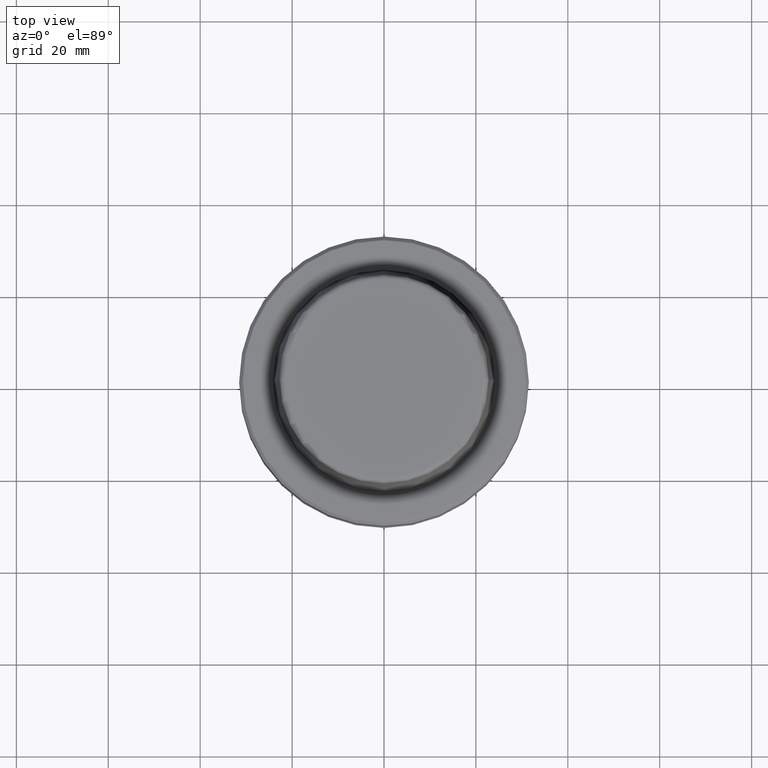
[diagram: clean part render]
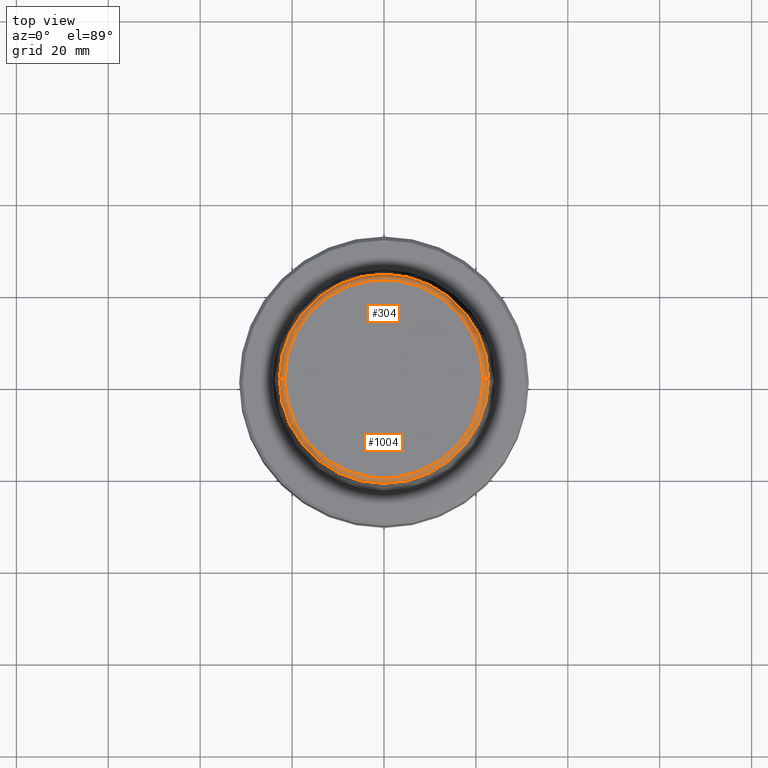
[diagram: same view with one multi-face feature highlighted, each face labeled with its STEP entity id]
A machine part, top view. The highlighted faces form ONE feature: a constant-radius fillet chain: 2 tangent blend faces with common blend radius 1.2 mm. The faces share edges in the B-rep.
Their STEP definitions:
[1] entity #304 (Torus):
#1 = AXIS2_PLACEMENT_3D ( 'NONE', #865, #563, #768 ) ;
#3 = FACE_OUTER_BOUND ( 'NONE', #216, .T. ) ;
#58 = CARTESIAN_POINT ( 'NONE',  ( 21.58108272732117100, 0.0000000000000000000, 30.69999999999999200 ) ) ;
#137 = EDGE_CURVE ( 'NONE', #399, #479, #975, .T. ) ;
#156 = DIRECTION ( 'NONE',  ( 0.0000000000000000000, 0.0000000000000000000, -1.000000000000000000 ) ) ;
#175 = AXIS2_PLACEMENT_3D ( 'NONE', #58, #748, #156 ) ;
#189 = CIRCLE ( 'NONE', #1, 21.58108272732117100 ) ;
#216 = EDGE_LOOP ( 'NONE', ( #839, #749, #553, #1156 ) ) ;
#304 = ADVANCED_FACE ( 'NONE', ( #3 ), #684, .T. ) ;
#330 = CARTESIAN_POINT ( 'NONE',  ( 22.77957961851797100, 2.874852597157249900E-015, 30.76004333261571900 ) ) ;
#391 = CARTESIAN_POINT ( 'NONE',  ( 0.0000000000000000000, 0.0000000000000000000, 30.76004333261571900 ) ) ;
#399 = VERTEX_POINT ( 'NONE', #1005 ) ;
#403 = DIRECTION ( 'NONE',  ( -1.000000000000000000, 1.224646799147353200E-016, 0.0000000000000000000 ) ) ;
#442 = CIRCLE ( 'NONE', #1203, 22.77957961851797100 ) ;
#456 = EDGE_CURVE ( 'NONE', #1141, #479, #189, .T. ) ;
#469 = DIRECTION ( 'NONE',  ( 1.224646799147353200E-016, 1.000000000000000000, 0.0000000000000000000 ) ) ;
#479 = VERTEX_POINT ( 'NONE', #663 ) ;
#493 = DIRECTION ( 'NONE',  ( 1.000000000000000000, 0.0000000000000000000, 0.0000000000000000000 ) ) ;
#553 = ORIENTED_EDGE ( 'NONE', *, *, #456, .F. ) ;
#563 = DIRECTION ( 'NONE',  ( -0.0000000000000000000, -0.0000000000000000000, 1.000000000000000000 ) ) ;
#576 = DIRECTION ( 'NONE',  ( -0.0000000000000000000, -0.0000000000000000000, 1.000000000000000000 ) ) ;
#604 = CARTESIAN_POINT ( 'NONE',  ( 21.58108272732117100, 0.0000000000000000000, 31.89999999999999900 ) ) ;
#627 = CIRCLE ( 'NONE', #175, 1.200000000000003100 ) ;
#663 = CARTESIAN_POINT ( 'NONE',  ( -21.58108272732117100, 2.716307157494421400E-015, 31.89999999999999900 ) ) ;
#684 = TOROIDAL_SURFACE ( 'NONE', #808, 21.58108272732117100, 1.200000000000003100 ) ;
#748 = DIRECTION ( 'NONE',  ( 0.0000000000000000000, -1.000000000000000000, 0.0000000000000000000 ) ) ;
#749 = ORIENTED_EDGE ( 'NONE', *, *, #137, .T. ) ;
#768 = DIRECTION ( 'NONE',  ( 1.000000000000000000, 0.0000000000000000000, 0.0000000000000000000 ) ) ;
#786 = EDGE_CURVE ( 'NONE', #1272, #1141, #627, .T. ) ;
#808 = AXIS2_PLACEMENT_3D ( 'NONE', #1184, #576, #1114 ) ;
#839 = ORIENTED_EDGE ( 'NONE', *, *, #1084, .T. ) ;
#865 = CARTESIAN_POINT ( 'NONE',  ( 0.0000000000000000000, 0.0000000000000000000, 31.89999999999999900 ) ) ;
#971 = CARTESIAN_POINT ( 'NONE',  ( -21.58108272732117100, 2.642920388414810300E-015, 30.69999999999999200 ) ) ;
#975 = CIRCLE ( 'NONE', #1100, 1.200000000000003100 ) ;
#1005 = CARTESIAN_POINT ( 'NONE',  ( -22.77957961851797100, 0.0000000000000000000, 30.76004333261571900 ) ) ;
#1084 = EDGE_CURVE ( 'NONE', #1272, #399, #442, .T. ) ;
#1097 = DIRECTION ( 'NONE',  ( -0.0000000000000000000, -0.0000000000000000000, 1.000000000000000000 ) ) ;
#1100 = AXIS2_PLACEMENT_3D ( 'NONE', #971, #469, #403 ) ;
#1114 = DIRECTION ( 'NONE',  ( 1.000000000000000000, 0.0000000000000000000, 0.0000000000000000000 ) ) ;
#1141 = VERTEX_POINT ( 'NONE', #604 ) ;
#1156 = ORIENTED_EDGE ( 'NONE', *, *, #786, .F. ) ;
#1184 = CARTESIAN_POINT ( 'NONE',  ( 0.0000000000000000000, 0.0000000000000000000, 30.69999999999999200 ) ) ;
#1203 = AXIS2_PLACEMENT_3D ( 'NONE', #391, #1097, #493 ) ;
#1272 = VERTEX_POINT ( 'NONE', #330 ) ;
[2] entity #1004 (Torus):
#20 = CIRCLE ( 'NONE', #767, 21.58108272732117100 ) ;
#49 = EDGE_CURVE ( 'NONE', #479, #1141, #20, .T. ) ;
#58 = CARTESIAN_POINT ( 'NONE',  ( 21.58108272732117100, 0.0000000000000000000, 30.69999999999999200 ) ) ;
#64 = FACE_OUTER_BOUND ( 'NONE', #1265, .T. ) ;
#137 = EDGE_CURVE ( 'NONE', #399, #479, #975, .T. ) ;
#148 = ORIENTED_EDGE ( 'NONE', *, *, #49, .F. ) ;
#150 = TOROIDAL_SURFACE ( 'NONE', #940, 21.58108272732117100, 1.200000000000003100 ) ;
#156 = DIRECTION ( 'NONE',  ( 0.0000000000000000000, 0.0000000000000000000, -1.000000000000000000 ) ) ;
#175 = AXIS2_PLACEMENT_3D ( 'NONE', #58, #748, #156 ) ;
#235 = CIRCLE ( 'NONE', #596, 22.77957961851797100 ) ;
#302 = DIRECTION ( 'NONE',  ( -0.0000000000000000000, -0.0000000000000000000, 1.000000000000000000 ) ) ;
#323 = DIRECTION ( 'NONE',  ( 1.000000000000000000, 0.0000000000000000000, 0.0000000000000000000 ) ) ;
#330 = CARTESIAN_POINT ( 'NONE',  ( 22.77957961851797100, 2.874852597157249900E-015, 30.76004333261571900 ) ) ;
#341 = ORIENTED_EDGE ( 'NONE', *, *, #137, .F. ) ;
#377 = DIRECTION ( 'NONE',  ( -0.0000000000000000000, -0.0000000000000000000, 1.000000000000000000 ) ) ;
#399 = VERTEX_POINT ( 'NONE', #1005 ) ;
#403 = DIRECTION ( 'NONE',  ( -1.000000000000000000, 1.224646799147353200E-016, 0.0000000000000000000 ) ) ;
#468 = CARTESIAN_POINT ( 'NONE',  ( 0.0000000000000000000, 0.0000000000000000000, 30.69999999999999200 ) ) ;
#469 = DIRECTION ( 'NONE',  ( 1.224646799147353200E-016, 1.000000000000000000, 0.0000000000000000000 ) ) ;
#479 = VERTEX_POINT ( 'NONE', #663 ) ;
#483 = DIRECTION ( 'NONE',  ( 1.000000000000000000, 0.0000000000000000000, 0.0000000000000000000 ) ) ;
#578 = DIRECTION ( 'NONE',  ( -0.0000000000000000000, -0.0000000000000000000, 1.000000000000000000 ) ) ;
#596 = AXIS2_PLACEMENT_3D ( 'NONE', #978, #377, #1082 ) ;
#604 = CARTESIAN_POINT ( 'NONE',  ( 21.58108272732117100, 0.0000000000000000000, 31.89999999999999900 ) ) ;
#627 = CIRCLE ( 'NONE', #175, 1.200000000000003100 ) ;
#663 = CARTESIAN_POINT ( 'NONE',  ( -21.58108272732117100, 2.716307157494421400E-015, 31.89999999999999900 ) ) ;
#707 = CARTESIAN_POINT ( 'NONE',  ( 0.0000000000000000000, 0.0000000000000000000, 31.89999999999999900 ) ) ;
#748 = DIRECTION ( 'NONE',  ( 0.0000000000000000000, -1.000000000000000000, 0.0000000000000000000 ) ) ;
#767 = AXIS2_PLACEMENT_3D ( 'NONE', #707, #302, #323 ) ;
#786 = EDGE_CURVE ( 'NONE', #1272, #1141, #627, .T. ) ;
#940 = AXIS2_PLACEMENT_3D ( 'NONE', #468, #578, #483 ) ;
#971 = CARTESIAN_POINT ( 'NONE',  ( -21.58108272732117100, 2.642920388414810300E-015, 30.69999999999999200 ) ) ;
#975 = CIRCLE ( 'NONE', #1100, 1.200000000000003100 ) ;
#978 = CARTESIAN_POINT ( 'NONE',  ( 0.0000000000000000000, 0.0000000000000000000, 30.76004333261571900 ) ) ;
#1001 = EDGE_CURVE ( 'NONE', #399, #1272, #235, .T. ) ;
#1004 = ADVANCED_FACE ( 'NONE', ( #64 ), #150, .T. ) ;
#1005 = CARTESIAN_POINT ( 'NONE',  ( -22.77957961851797100, 0.0000000000000000000, 30.76004333261571900 ) ) ;
#1082 = DIRECTION ( 'NONE',  ( 1.000000000000000000, 0.0000000000000000000, 0.0000000000000000000 ) ) ;
#1100 = AXIS2_PLACEMENT_3D ( 'NONE', #971, #469, #403 ) ;
#1141 = VERTEX_POINT ( 'NONE', #604 ) ;
#1207 = ORIENTED_EDGE ( 'NONE', *, *, #1001, .T. ) ;
#1211 = ORIENTED_EDGE ( 'NONE', *, *, #786, .T. ) ;
#1265 = EDGE_LOOP ( 'NONE', ( #341, #1207, #1211, #148 ) ) ;
#1272 = VERTEX_POINT ( 'NONE', #330 ) ;